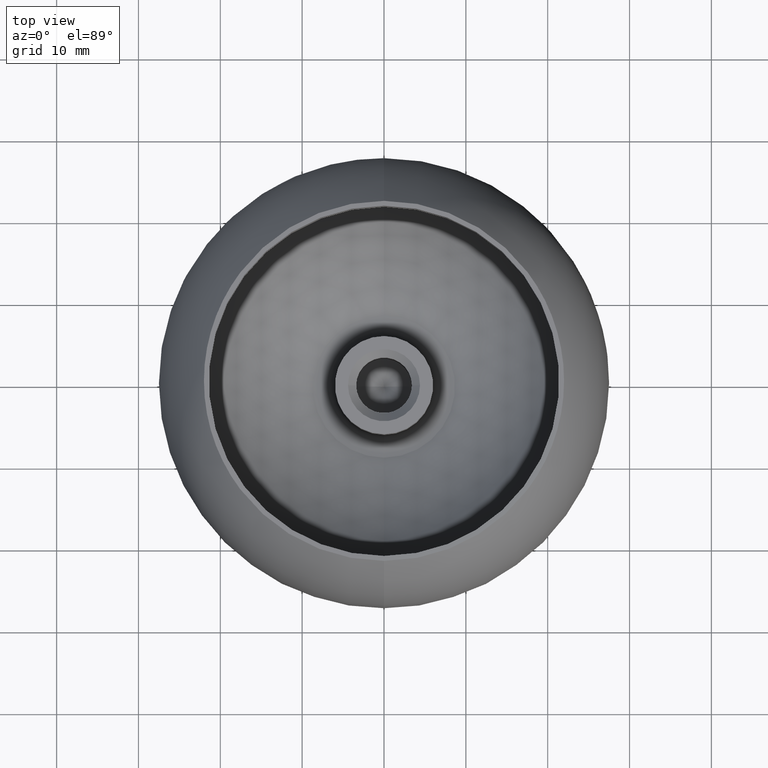
[diagram: clean part render]
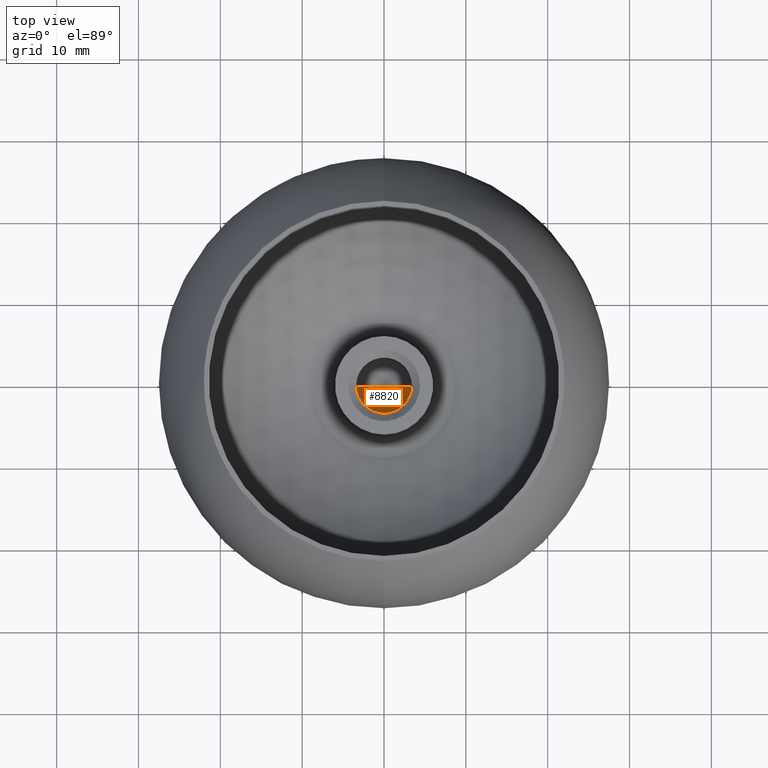
[diagram: same view with one face highlighted and labeled with its STEP entity id]
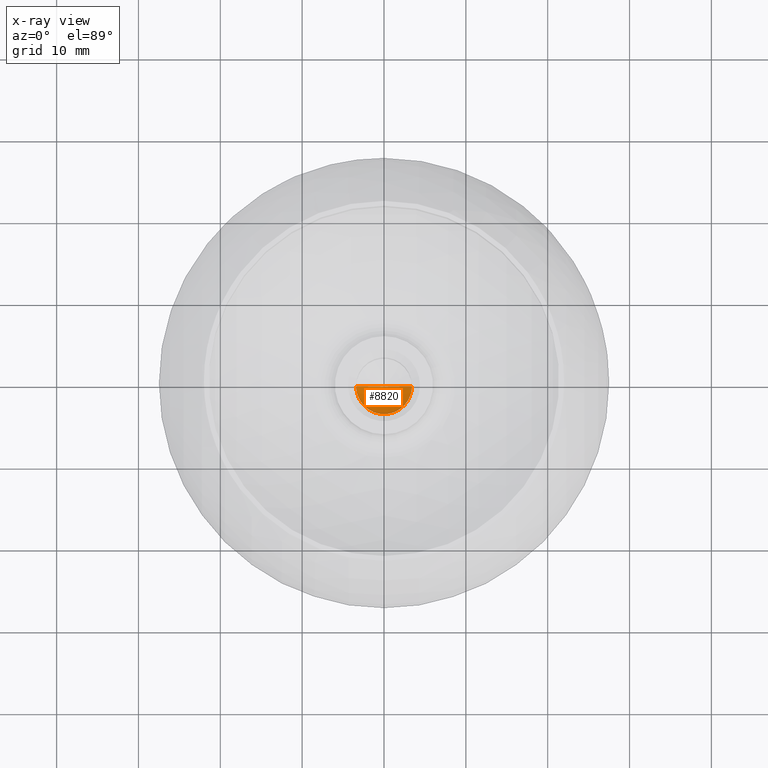
[diagram: x-ray of the same camera — body ghosted, the highlighted face saturated]
A machine part, top view. The second image highlights one B-rep face of the part: STEP entity #8820.
The next image is the same camera in x-ray: the body ghosted, the highlighted face saturated — about 0% of this face is hidden behind the body in this view.
In plain terms, the highlighted conical surface has half-angle 59 deg.
Its self-contained STEP definition (entity closure, byte-faithful):
#779 = CIRCLE ( 'NONE', #11186, 3.399999999999996400 ) ;
#817 = VERTEX_POINT ( 'NONE', #4331 ) ;
#1379 = CARTESIAN_POINT ( 'NONE',  ( 0.0000000000000000000, -4.017119658731438400E-015, -22.49999999999999300 ) ) ;
#2496 = DIRECTION ( 'NONE',  ( -0.8571673007021118900, 1.049727191138618100E-016, 0.5150380749100549300 ) ) ;
#3052 = AXIS2_PLACEMENT_3D ( 'NONE', #6750, #10478, #9518 ) ;
#3215 = CARTESIAN_POINT ( 'NONE',  ( 3.399999999999996400, -4.017119658731438400E-015, -22.49999999999999300 ) ) ;
#3236 = FACE_OUTER_BOUND ( 'NONE', #4126, .T. ) ;
#3258 = DIRECTION ( 'NONE',  ( 1.000000000000000000, 0.0000000000000000000, 0.0000000000000000000 ) ) ;
#3346 = VERTEX_POINT ( 'NONE', #11145 ) ;
#3375 = CARTESIAN_POINT ( 'NONE',  ( -2.704736821466780800E-015, -4.017119658731438400E-015, -24.54292610469369900 ) ) ;
#3883 = ORIENTED_EDGE ( 'NONE', *, *, #12141, .T. ) ;
#4126 = EDGE_LOOP ( 'NONE', ( #11700, #6878, #3883 ) ) ;
#4331 = CARTESIAN_POINT ( 'NONE',  ( 3.399999999999996400, -4.017119658731438400E-015, -22.49999999999999300 ) ) ;
#4453 = CARTESIAN_POINT ( 'NONE',  ( -3.399999999999996400, -3.600739747021338800E-015, -22.49999999999999300 ) ) ;
#4454 = VECTOR ( 'NONE', #10707, 1000.000000000000000 ) ;
#4809 = LINE ( 'NONE', #4453, #8055 ) ;
#5366 = EDGE_CURVE ( 'NONE', #7226, #817, #10032, .T. ) ;
#5810 = CONICAL_SURFACE ( 'NONE', #3052, 3.399999999999996400, 1.029744258676653600 ) ;
#6750 = CARTESIAN_POINT ( 'NONE',  ( 0.0000000000000000000, -4.017119658731438400E-015, -22.49999999999999300 ) ) ;
#6878 = ORIENTED_EDGE ( 'NONE', *, *, #7116, .T. ) ;
#7116 = EDGE_CURVE ( 'NONE', #7226, #3346, #4809, .T. ) ;
#7226 = VERTEX_POINT ( 'NONE', #3375 ) ;
#8055 = VECTOR ( 'NONE', #2496, 1000.000000000000000 ) ;
#8820 = ADVANCED_FACE ( 'NONE', ( #3236 ), #5810, .F. ) ;
#8923 = DIRECTION ( 'NONE',  ( -0.0000000000000000000, -0.0000000000000000000, 1.000000000000000000 ) ) ;
#9518 = DIRECTION ( 'NONE',  ( 1.000000000000000000, 0.0000000000000000000, 0.0000000000000000000 ) ) ;
#10032 = LINE ( 'NONE', #3215, #4454 ) ;
#10478 = DIRECTION ( 'NONE',  ( -0.0000000000000000000, -0.0000000000000000000, 1.000000000000000000 ) ) ;
#10707 = DIRECTION ( 'NONE',  ( 0.8571673007021118900, 0.0000000000000000000, 0.5150380749100549300 ) ) ;
#11145 = CARTESIAN_POINT ( 'NONE',  ( -3.399999999999996400, -3.600739747021338800E-015, -22.49999999999999300 ) ) ;
#11186 = AXIS2_PLACEMENT_3D ( 'NONE', #1379, #8923, #3258 ) ;
#11700 = ORIENTED_EDGE ( 'NONE', *, *, #5366, .F. ) ;
#12141 = EDGE_CURVE ( 'NONE', #3346, #817, #779, .T. ) ;